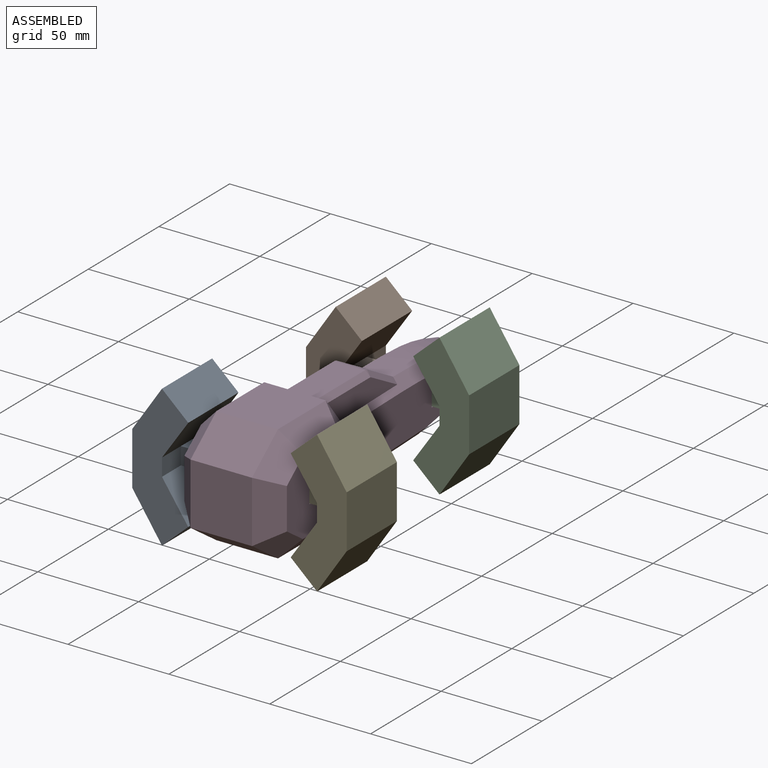
[diagram: assembled view]
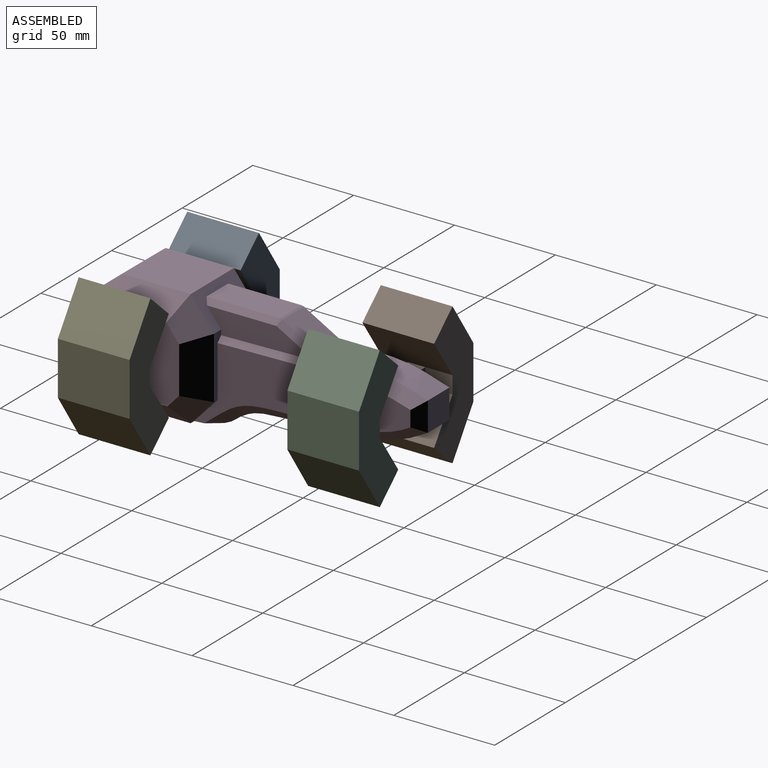
[diagram: assembled view, second angle]
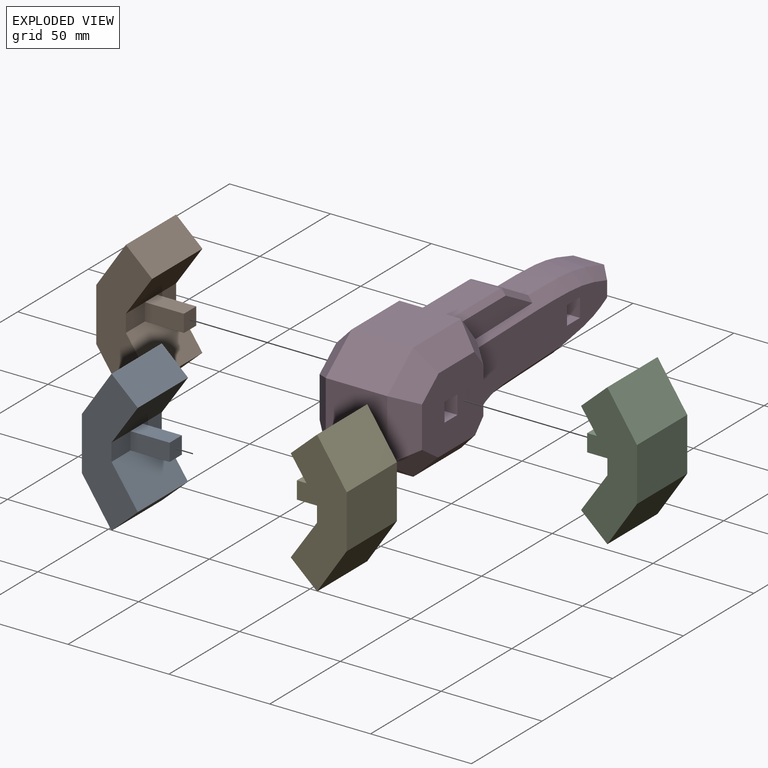
[diagram: exploded view]
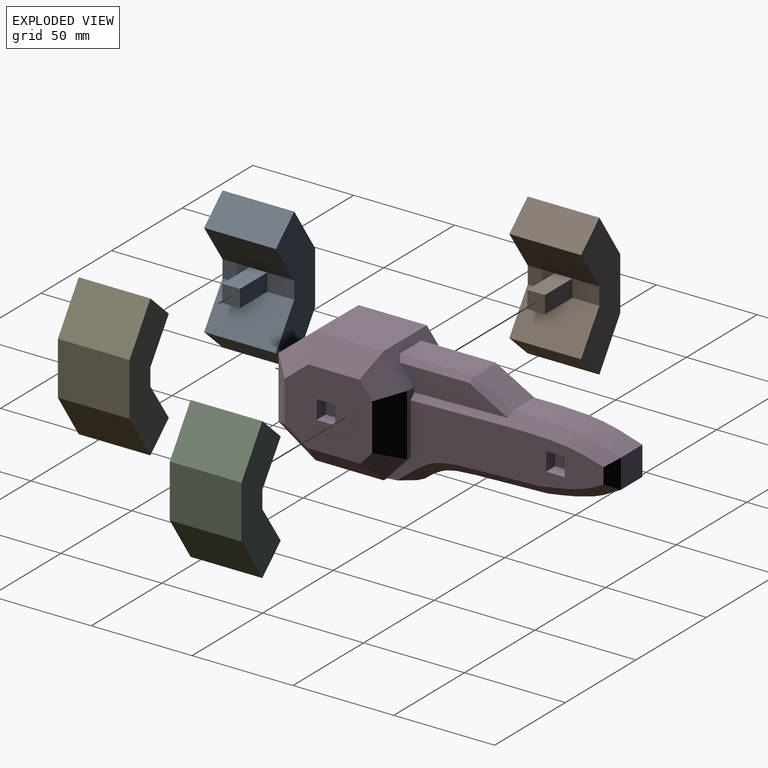
[diagram: exploded view, second angle]
ASSEMBLY  parts=5 mates=4
PART A: 16 faces, bbox 34.1x35.6x70.3 mm
  f0: plane 19.38x8.71mm, normal (0,0,-1), area 168.9mm2, adj f1,f3,f4,f7
  f1: plane 8.71x8.64mm, normal (1,0,0), area 75.2mm2, adj f0,f2,f3,f4
  f2: plane 19.38x8.71mm, normal (0,0,1), area 168.9mm2, adj f1,f3,f4,f8
  f3: plane 19.38x8.64mm, normal (0,-1,0), area 167.4mm2, adj f0,f1,f2,f5
  f4: plane 19.38x8.64mm, normal (0,1,0), area 167.4mm2, adj f0,f1,f2,f14
  f5: plane 13.42x8.64mm, normal (1,0,0), area 115.9mm2, adj f3,f7,f8,f13
  f6: plane 35.56x13.03mm, normal (0.67,0,-0.74), area 625.7mm2, adj f7,f12,f13,f15
  f7: plane 35.56x19.01mm, normal (0.82,0,0.57), area 819.8mm2, adj f0,f5,f6,f13,f14,f15
  f8: plane 35.56x19.01mm, normal (0.82,0,-0.57), area 819.8mm2, adj f2,f5,f9,f13,f14,f15
  f9: plane 35.56x13.03mm, normal (0.67,0,0.74), area 625.7mm2, adj f8,f10,f13,f15
  f10: plane 35.56x21.95mm, normal (-0.83,0,0.56), area 939.8mm2, adj f9,f11,f13,f15
  f11: plane 35.56x26.4mm, normal (-1,0,0), area 938.8mm2, adj f10,f12,f13,f15
  f12: plane 35.56x21.95mm, normal (-0.83,0,-0.56), area 939.8mm2, adj f6,f11,f13,f15
  f13: plane 70.31x27.75mm, normal (0,-1,0), area 1113.5mm2, adj f5,f6,f7,f8,f9,f10,f11,f12
  f14: plane 13.42x8.64mm, normal (1,0,0), area 115.9mm2, adj f4,f7,f8,f15
  f15: plane 70.31x27.75mm, normal (0,1,0), area 1113.5mm2, adj f6,f7,f8,f9,f10,f11,f12,f14
PART B: same geometry as A
PART C: same geometry as A
PART D: 80 faces, bbox 170.4x52.1x64 mm
  f0: plane 30.48x14.74mm, normal (0.79,0,0.62), area 282.9mm2, adj f3,f4,f9,f14,f22,f57,f58,f59
  f1: plane 108.42x40.28mm, normal (0,1,0), area 2047.4mm2, adj f2,f3,f34,f51,f52,f53,f54,f68
  f2: plane 12.51x11.54mm, normal (0.74,0,-0.68), area 43.2mm2, adj f1,f3,f7,f18
  f3: plane 30.62x5.08mm, normal (1,0,0), area 87.5mm2, adj f0,f1,f2,f16,f59,f68
  f4: plane 33.8x30.48mm, normal (0,0,1), area 1030.1mm2, adj f0,f5,f12,f24
  f5: plane 30.48x18.37mm, normal (-0.63,0,0.78), area 717.7mm2, adj f4,f13,f26,f35
  f6: plane 30.48x18.37mm, normal (-0.56,0,-0.83), area 677.4mm2, adj f7,f17,f25,f35
  f7: plane 33.8x30.48mm, normal (0,0,-1), area 1030.1mm2, adj f2,f6,f8,f19,f23,f34
  f8: plane 12.51x11.54mm, normal (0.74,0,-0.68), area 43.2mm2, adj f7,f9,f21,f28
  f9: plane 30.62x5.08mm, normal (1,0,0), area 87.5mm2, adj f0,f8,f20,f28,f58,f67
  f10: plane 43.38x37.55mm, normal (0,-1,0), area 1400.5mm2, adj f20,f21,f22,f23,f24,f25,f26,f27
  f11: plane 43.38x37.55mm, normal (0,1,0), area 1400.5mm2, adj f12,f13,f14,f15,f16,f17,f18,f19
  f12: plane 33.8x10.16mm, normal (0,0.71,0.71), area 424.4mm2, adj f4,f11,f13,f14
  f13: plane 21.94x19.61mm, normal (-0.44,0.71,0.55), area 277.7mm2, adj f5,f11,f12,f15
  f14: plane 18.24x16.49mm, normal (0.56,0.71,0.44), area 208.2mm2, adj f0,f11,f12,f16
  f15: plane 30.62x10.16mm, normal (-0.71,0.71,0), area 366.4mm2, adj f11,f13,f17,f35
  f16: plane 30.62x10.16mm, normal (0.71,0.71,0), area 386.3mm2, adj f3,f11,f14,f18
  f17: plane 21.5x17.88mm, normal (-0.4,0.71,-0.58), area 258.2mm2, adj f6,f11,f15,f19
  f18: plane 16.48x15.99mm, normal (0.52,0.71,-0.48), area 184mm2, adj f2,f11,f16,f19
  f19: plane 33.8x10.16mm, normal (0,0.71,-0.71), area 431.1mm2, adj f7,f11,f17,f18
  f20: plane 30.62x10.16mm, normal (0.71,-0.71,0), area 386.3mm2, adj f9,f10,f21,f22
  f21: plane 16.48x15.99mm, normal (0.52,-0.71,-0.48), area 184mm2, adj f8,f10,f20,f23
  f22: plane 18.24x16.49mm, normal (0.56,-0.71,0.44), area 208.2mm2, adj f0,f10,f20,f24
  f23: plane 33.8x10.16mm, normal (0,-0.71,-0.71), area 431.1mm2, adj f7,f10,f21,f25
  f24: plane 33.8x10.16mm, normal (0,-0.71,0.71), area 424.4mm2, adj f4,f10,f22,f26
  f25: plane 21.5x17.88mm, normal (-0.4,-0.71,-0.58), area 258.2mm2, adj f6,f10,f23,f27
  f26: plane 21.94x19.61mm, normal (-0.44,-0.71,0.55), area 277.7mm2, adj f5,f10,f24,f27
  f27: plane 30.62x10.16mm, normal (-0.71,-0.71,0), area 366.4mm2, adj f10,f25,f26,f35
  f28: plane 108.42x40.28mm, normal (0,-1,0), area 2047.4mm2, adj f8,f9,f34,f41,f42,f43,f44,f67
  f29: extruded ~53.65x15.24mm, area 829.8mm2, adj f30,f56,f69,f70
  f30: plane 15.24x14.41mm, normal (1,0,0), area 219.6mm2, adj f29,f31,f71,f72
  f31: extruded ~36.03x15.24mm, area 580.4mm2, adj f30,f32,f73,f74
  f32: plane 35.87x15.24mm, normal (0.04,0,-1), area 547.1mm2, adj f31,f33,f75,f76
  f33: extruded ~25.4x15.24mm, area 418.7mm2, adj f32,f77,f78,f79
  f34: plane 25.41x12.08mm, normal (0.06,0,-1), area 277.7mm2, adj f1,f7,f28,f77,f78,f79
  f35: plane 30.62x30.48mm, normal (-1,0,0), area 933.4mm2, adj f5,f6,f15,f27
  f36: plane 9.22x6.35mm, normal (0,0,1), area 58.5mm2, adj f10,f37,f39,f40
  f37: plane 9.22x6.35mm, normal (-1,0,0), area 58.5mm2, adj f10,f36,f38,f40
  f38: plane 9.22x6.35mm, normal (0,0,-1), area 58.5mm2, adj f10,f37,f39,f40
  f39: plane 9.22x6.35mm, normal (1,0,0), area 58.5mm2, adj f10,f36,f38,f40
  f40: plane 9.22x9.22mm, normal (0,-1,0), area 85mm2, adj f36,f37,f38,f39
  f41: plane 9.22x6.35mm, normal (0,0,1), area 58.5mm2, adj f28,f42,f44,f45
  f42: plane 9.22x6.35mm, normal (-1,0,0), area 58.5mm2, adj f28,f41,f43,f45
  f43: plane 9.22x6.35mm, normal (0,0,-1), area 58.5mm2, adj f28,f42,f44,f45
  f44: plane 9.22x6.35mm, normal (1,0,0), area 58.5mm2, adj f28,f41,f43,f45
  f45: plane 9.22x9.22mm, normal (0,-1,0), area 85mm2, adj f41,f42,f43,f44
  f46: plane 9.22x9.22mm, normal (0,1,0), area 85mm2, adj f47,f48,f49,f50
  f47: plane 9.22x6.35mm, normal (1,0,0), area 58.5mm2, adj f11,f46,f48,f50
  f48: plane 9.22x6.35mm, normal (0,0,-1), area 58.5mm2, adj f11,f46,f47,f49
  f49: plane 9.22x6.35mm, normal (-1,0,0), area 58.5mm2, adj f11,f46,f48,f50
  f50: plane 9.22x6.35mm, normal (0,0,1), area 58.5mm2, adj f11,f46,f47,f49
  f51: plane 9.22x6.35mm, normal (0,0,1), area 58.5mm2, adj f1,f52,f54,f55
  f52: plane 9.22x6.35mm, normal (-1,0,0), area 58.5mm2, adj f1,f51,f53,f55
  f53: plane 9.22x6.35mm, normal (0,0,-1), area 58.5mm2, adj f1,f52,f54,f55
  f54: plane 9.22x6.35mm, normal (1,0,0), area 58.5mm2, adj f1,f51,f53,f55
  f55: plane 9.22x9.22mm, normal (0,1,0), area 85mm2, adj f51,f52,f53,f54
  f56: plane 18.43x15.24mm, normal (0.48,0,0.87), area 321mm2, adj f29,f60,f63,f66
  f57: plane 36.36x15.24mm, normal (0,0,1), area 554.2mm2, adj f0,f61,f62,f66
  f58: plane 53.4x11.46mm, normal (0,-1,0), area 441.2mm2, adj f0,f9,f60,f61,f67
  f59: plane 53.4x11.46mm, normal (0,1,0), area 441.2mm2, adj f0,f3,f62,f63,f68
  f60: plane 19.66x12.75mm, normal (0.34,-0.71,0.62), area 76.9mm2, adj f56,f58,f64,f67
  f61: plane 36.36x2.54mm, normal (0,-0.71,0.71), area 127mm2, adj f0,f57,f58,f64
  f62: plane 36.36x2.54mm, normal (0,0.71,0.71), area 127mm2, adj f0,f57,f59,f65
  f63: plane 19.66x12.75mm, normal (0.34,0.71,0.62), area 76.9mm2, adj f56,f59,f65,f68
  f64: plane 2.54x2.54mm, normal (0.18,-0.7,0.7), area 2.2mm2, adj f60,f61,f66
  f65: plane 2.54x2.54mm, normal (0.18,0.7,0.7), area 2.2mm2, adj f62,f63,f66
  f66: plane 15.24x1.23mm, normal (0.25,0,0.97), area 19.4mm2, adj f56,f57,f64,f65
  f67: plane 47.08x6.02mm, normal (-0.01,-0.71,0.71), area 170.3mm2, adj f9,f28,f58,f60,f69
  f68: plane 47.08x6.02mm, normal (-0.01,0.71,0.71), area 170.2mm2, adj f1,f3,f59,f63,f70
  f69: bspline ~73.83x13.23mm, area 372mm2, adj f28,f29,f67,f71
  f70: bspline ~73.83x13.23mm, area 372mm2, adj f1,f29,f68,f72
  f71: plane 14.43x5.1mm, normal (0.71,-0.71,0), area 79.7mm2, adj f28,f30,f69,f73
  f72: plane 14.43x5.1mm, normal (0.71,0.71,0), area 79.7mm2, adj f1,f30,f70,f74
  f73: bspline ~36.82x15.7mm, area 255.3mm2, adj f28,f31,f71,f75
  f74: bspline ~36.82x15.7mm, area 255.3mm2, adj f1,f31,f72,f76
  f75: plane 36.06x6.34mm, normal (0.03,-0.71,-0.71), area 256.8mm2, adj f28,f32,f73,f77
  f76: plane 36.06x6.34mm, normal (0.03,0.71,-0.71), area 256.8mm2, adj f1,f32,f74,f78
  f77: bspline ~38.94x20.35mm, area 245.3mm2, adj f28,f33,f34,f75,f79
  f78: bspline ~38.94x20.35mm, area 245.3mm2, adj f1,f33,f34,f76,f79
  f79: plane 17.13x2.88mm, normal (0.36,0,-0.93), area 49.5mm2, adj f33,f34,f77,f78
PART E: same geometry as A
PLACE A t=(18.35,11.84,9.41)mm
PLACE B t=(31.05,116.69,9.41)mm
PLACE C rot(axis=(0,1,0),180deg) t=(307.25,116.69,152.52)mm
PLACE D rot(axis=(0,0,1),90deg) t=(169.15,-60.49,1.69)mm
PLACE E rot(axis=(0,0,1),180deg) t=(319.95,11.84,9.41)mm
MATE fastened E.f1 <-> D.f40  axis (-1,0,0) through (188.2,11.84,80.97)mm
MATE fastened D.f55 <-> B.f1  axis (-1,0,0) through (162.8,116.69,80.97)mm
MATE fastened C.f1 <-> D.f45  axis (-1,0,0) through (175.5,116.69,80.97)mm
MATE fastened D.f46 <-> A.f1  axis (-1,0,0) through (150.1,11.84,80.97)mm
